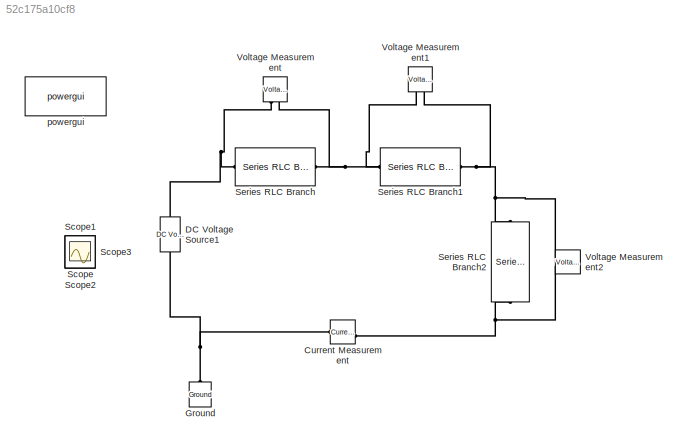
MODEL slx_52c175a10cf8
KIND model
CONFIG AbsTol = auto
CONFIG EnableMultiTasking = off
CONFIG FixedStep = 1e-6
CONFIG MaxStep = auto
CONFIG MinStep = auto
CONFIG RelTol = 1e-3
CONFIG SampleTimeConstraint = Unconstrained
CONFIG SolverName = FixedStepAuto
CONFIG StartTime = 0.0
CONFIG StopTime = 5
BLOCK [Reference] Current Measurement  REF=spsCurrentMeasurementLib/Current Measurement
  Ports = [0, 1, 0, 0, 0, 1, 1]
  SourceBlock = spsCurrentMeasurementLib/Current Measurement
  SourceProductBaseCode = PS
  SourceType = Current Measurement
  UserDataPersistent = on
BLOCK [Reference] DC Voltage Source1  REF=spsDCVoltageSourceLib/DC Voltage Source
  Ports = [0, 0, 0, 0, 0, 1, 1]
  SourceBlock = spsDCVoltageSourceLib/DC Voltage Source
  SourceProductBaseCode = PS
  SourceType = DC Voltage Source
BLOCK [Reference] Ground  REF=spsGroundLib/Ground
  NameLocation = right
  Ports = [0, 0, 0, 0, 0, 1]
  SourceBlock = spsGroundLib/Ground
  SourceProductBaseCode = PS
  SourceType = Ground
BLOCK [Scope] Scope
  Floating = off
  IOType = viewer
  NumInputPorts = 1
  Ports = []
  ScopeSpecificationString = Simulink.scopes.TimeScopeBlockCfg('CurrentConfiguration', extmgr.ConfigurationSet(extmgr.Configuration('Core','General UI',true),extmgr.Configuration('Core','Source UI',true),extmgr.Configuration('Sources','WiredSimulink',true),extmgr.Configuration('Visuals','Time Domain',true,'SerializedDisplays',{struct('MinYLimReal','-10.51723','MaxYLimReal','11.27482','YLabelReal','','MinYLimMag','0.00000','Ma...<+1374ch>
BLOCK [Scope] Scope1
  Floating = off
  IOType = viewer
  NumInputPorts = 1
  Ports = []
  ScopeSpecificationString = Simulink.scopes.TimeScopeBlockCfg('CurrentConfiguration', extmgr.ConfigurationSet(extmgr.Configuration('Core','General UI',true),extmgr.Configuration('Core','Source UI',true),extmgr.Configuration('Sources','WiredSimulink',true,'DataLoggingVariableName','ScopeData1'),extmgr.Configuration('Visuals','Time Domain',true,'SerializedDisplays',{struct('MinYLimReal','-11.27482','MaxYLimReal','10.51723','YL...<+1413ch>
BLOCK [Scope] Scope2
  Floating = off
  IOType = viewer
  NumInputPorts = 1
  Ports = []
  ScopeSpecificationString = Simulink.scopes.TimeScopeBlockCfg('CurrentConfiguration', extmgr.ConfigurationSet(extmgr.Configuration('Core','General UI',true),extmgr.Configuration('Core','Source UI',true),extmgr.Configuration('Sources','WiredSimulink',true,'DataLoggingVariableName','ScopeData2'),extmgr.Configuration('Visuals','Time Domain',true,'SerializedDisplays',{struct('MinYLimReal','-337.14313','MaxYLimReal','342.48337','...<+1441ch>
BLOCK [Scope] Scope3
  Floating = off
  IOType = viewer
  NumInputPorts = 1
  Ports = []
  ScopeSpecificationString = Simulink.scopes.TimeScopeBlockCfg('CurrentConfiguration', extmgr.ConfigurationSet(extmgr.Configuration('Core','General UI',true),extmgr.Configuration('Core','Source UI',true),extmgr.Configuration('Sources','WiredSimulink',true,'DataLoggingVariableName','ScopeData3'),extmgr.Configuration('Visuals','Time Domain',true,'SerializedDisplays',{struct('MinYLimReal','-464.09803','MaxYLimReal','461.47811','...<+1422ch>
BLOCK [Reference] Series RLC Branch  REF=spsSeriesRLCBranchLib/Series RLC Branch
  Ports = [0, 0, 0, 0, 0, 1, 1]
  SourceBlock = spsSeriesRLCBranchLib/Series RLC Branch
  SourceProductBaseCode = PS
  SourceType = Series RLC Branch
BLOCK [Reference] Series RLC Branch1  REF=spsSeriesRLCBranchLib/Series RLC Branch
  Ports = [0, 0, 0, 0, 0, 1, 1]
  SourceBlock = spsSeriesRLCBranchLib/Series RLC Branch
  SourceProductBaseCode = PS
  SourceType = Series RLC Branch
BLOCK [Reference] Series RLC Branch2  REF=spsSeriesRLCBranchLib/Series RLC Branch
  NameLocation = left
  Ports = [0, 0, 0, 0, 0, 1, 1]
  SourceBlock = spsSeriesRLCBranchLib/Series RLC Branch
  SourceProductBaseCode = PS
  SourceType = Series RLC Branch
BLOCK [Reference] Voltage Measurement  REF=spsVoltageMeasurementLib/Voltage Measurement
  NameLocation = right
  Ports = [0, 1, 0, 0, 0, 2]
  SourceBlock = spsVoltageMeasurementLib/Voltage Measurement
  SourceProductBaseCode = PS
  SourceType = Voltage Measurement
  UserDataPersistent = on
BLOCK [Reference] Voltage Measurement1  REF=spsVoltageMeasurementLib/Voltage Measurement
  NameLocation = right
  Ports = [0, 1, 0, 0, 0, 2]
  SourceBlock = spsVoltageMeasurementLib/Voltage Measurement
  SourceProductBaseCode = PS
  SourceType = Voltage Measurement
  UserDataPersistent = on
BLOCK [Reference] Voltage Measurement2  REF=spsVoltageMeasurementLib/Voltage Measurement
  Ports = [0, 1, 0, 0, 0, 2]
  SourceBlock = spsVoltageMeasurementLib/Voltage Measurement
  SourceProductBaseCode = PS
  SourceType = Voltage Measurement
  UserDataPersistent = on
BLOCK [Reference] powergui  REF=spspowerguiLib/powergui
  Ports = []
  Priority = 1
  SourceBlock = spspowerguiLib/powergui
  SourceProductBaseCode = PS
  SourceType = PSB option menu block
PNET net1: Current Measurement:LConn1 -- DC Voltage Source1:LConn1 -- Ground:LConn1
PNET net2: Current Measurement:RConn1 -- Series RLC Branch2:RConn1 -- Voltage Measurement2:LConn2
PNET net3: DC Voltage Source1:RConn1 -- Series RLC Branch:LConn1 -- Voltage Measurement:LConn1
PNET net4: Series RLC Branch1:LConn1 -- Series RLC Branch:RConn1 -- Voltage Measurement1:LConn1 -- Voltage Measurement:LConn2
PNET net5: Series RLC Branch1:RConn1 -- Series RLC Branch2:LConn1 -- Voltage Measurement1:LConn2 -- Voltage Measurement2:LConn1
note: PNET lines group multi-terminal physical nets as a canonical sorted terminal list (undirected conserving connections); 2-terminal nets keep the pairwise PLINE form
